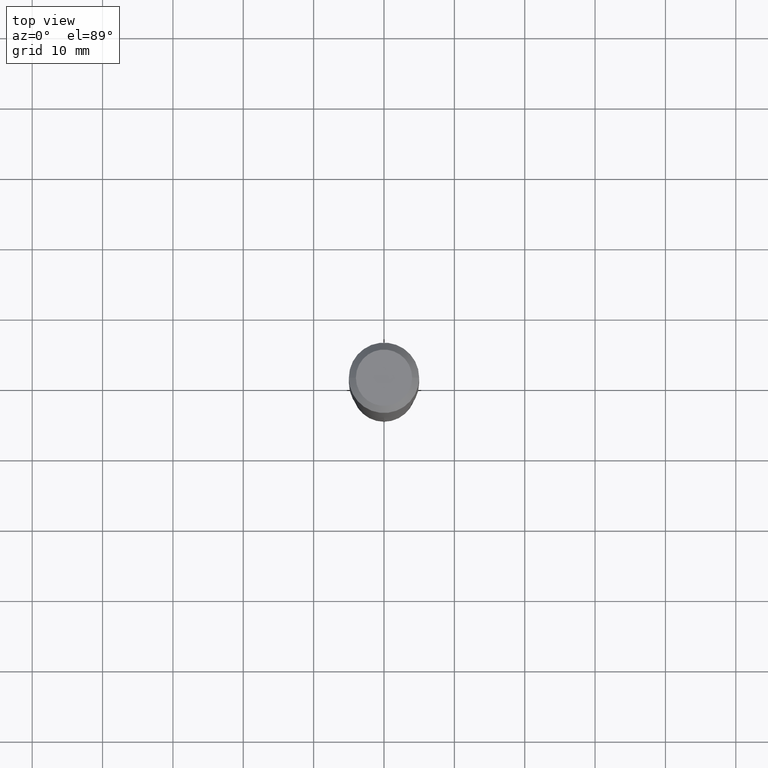
[diagram: clean part render]
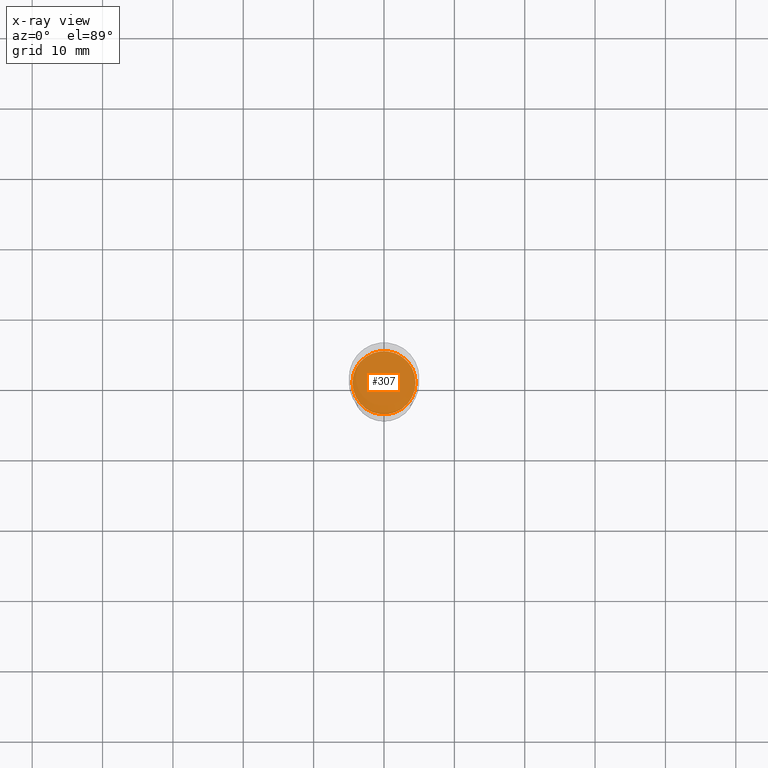
[diagram: x-ray — body ghosted, one internal face saturated and labeled with its STEP entity id]
A machine part, top view, then the same camera in x-ray: the body is ghosted and one INTERNAL B-rep face — a face not visible from any outside direction — is saturated and labeled: STEP entity #307.
In plain terms, the highlighted planar face has unit normal (-0, 0, 1).
Its self-contained STEP definition (entity closure, byte-faithful):
#36 = DIRECTION ( 'NONE',  ( -2.438088387897960049E-29, 3.491481338843145188E-15, 1.000000000000000000 ) ) ;
#37 = EDGE_LOOP ( 'NONE', ( #488, #41 ) ) ;
#41 = ORIENTED_EDGE ( 'NONE', *, *, #62, .F. ) ;
#62 = EDGE_CURVE ( 'NONE', #300, #188, #318, .T. ) ;
#115 = AXIS2_PLACEMENT_3D ( 'NONE', #346, #36, #478 ) ;
#122 = CARTESIAN_POINT ( 'NONE',  ( 4.043338124146504977E-29, -5.772815245643255982E-15, -1.653399999999999981 ) ) ;
#123 = CIRCLE ( 'NONE', #222, 0.1766500000000000015 ) ;
#149 = CARTESIAN_POINT ( 'NONE',  ( -0.1766500000000000015, -4.514992275748927201E-15, -1.653399999999999981 ) ) ;
#173 = DIRECTION ( 'NONE',  ( 1.000000000000000000, -6.982962677686269866E-15, 0.000000000000000000 ) ) ;
#188 = VERTEX_POINT ( 'NONE', #468 ) ;
#197 = EDGE_CURVE ( 'NONE', #188, #300, #123, .T. ) ;
#200 = DIRECTION ( 'NONE',  ( -2.445468806185136597E-29, 3.491481338843145583E-15, 1.000000000000000000 ) ) ;
#222 = AXIS2_PLACEMENT_3D ( 'NONE', #258, #328, #173 ) ;
#258 = CARTESIAN_POINT ( 'NONE',  ( 4.043338124146504977E-29, -5.772815245643255982E-15, -1.653399999999999981 ) ) ;
#300 = VERTEX_POINT ( 'NONE', #149 ) ;
#307 = ADVANCED_FACE ( 'NONE', ( #447 ), #341, .F. ) ;
#318 = CIRCLE ( 'NONE', #335, 0.1766500000000000015 ) ;
#328 = DIRECTION ( 'NONE',  ( -2.445468806185136597E-29, 3.491481338843145583E-15, 1.000000000000000000 ) ) ;
#335 = AXIS2_PLACEMENT_3D ( 'NONE', #122, #200, #354 ) ;
#341 = PLANE ( 'NONE',  #115 ) ;
#346 = CARTESIAN_POINT ( 'NONE',  ( 2.257835294075184018E-29, -8.329756922815342463E-15, -1.653399999999999981 ) ) ;
#354 = DIRECTION ( 'NONE',  ( 1.000000000000000000, -6.982962677686269866E-15, 0.000000000000000000 ) ) ;
#447 = FACE_OUTER_BOUND ( 'NONE', #37, .T. ) ;
#468 = CARTESIAN_POINT ( 'NONE',  ( 0.1766500000000000015, -7.006355602656536158E-15, -1.653399999999999981 ) ) ;
#478 = DIRECTION ( 'NONE',  ( 1.000000000000000000, -6.982962677686265922E-15, 4.876176775795935793E-29 ) ) ;
#488 = ORIENTED_EDGE ( 'NONE', *, *, #197, .F. ) ;